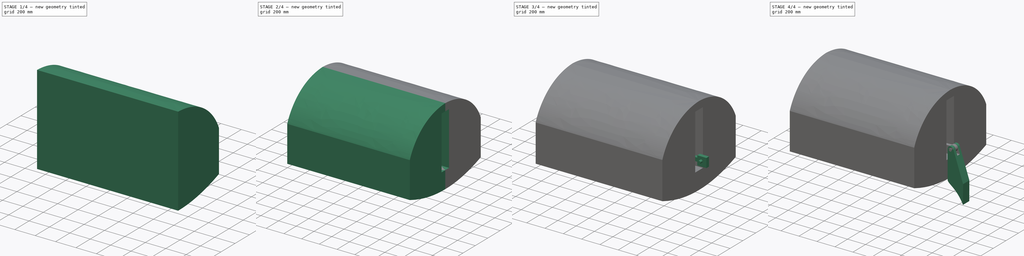
[diagram: build sequence overview — one tinted view per stage of 4, left to right]
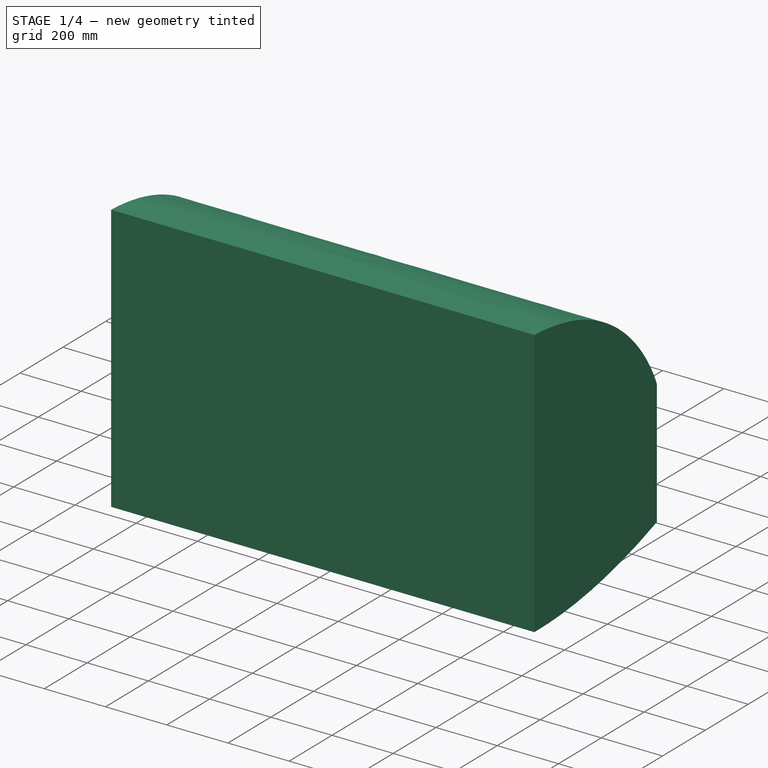
[diagram: stage 1 of 4 — iso view after this stage's code; geometry added in this stage tinted green]
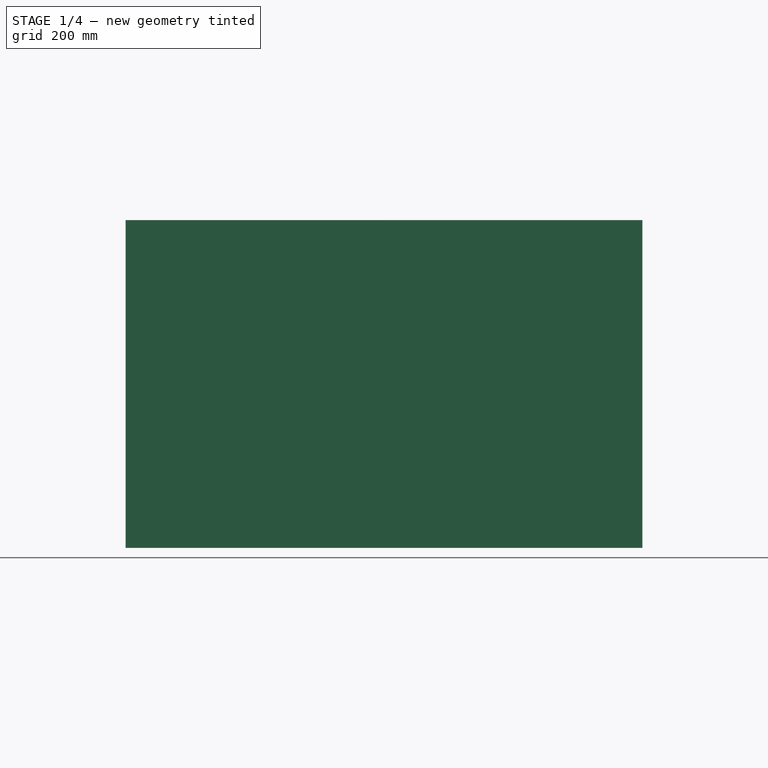
[diagram: stage 1 of 4 — front view after this stage's code; geometry added in this stage tinted green]
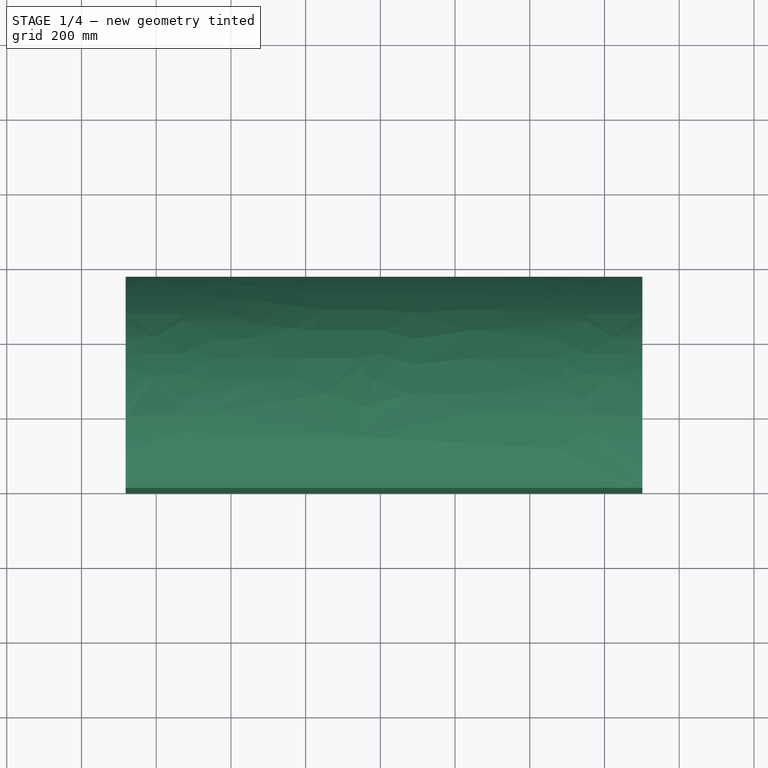
[diagram: stage 1 of 4 — top view after this stage's code; geometry added in this stage tinted green]
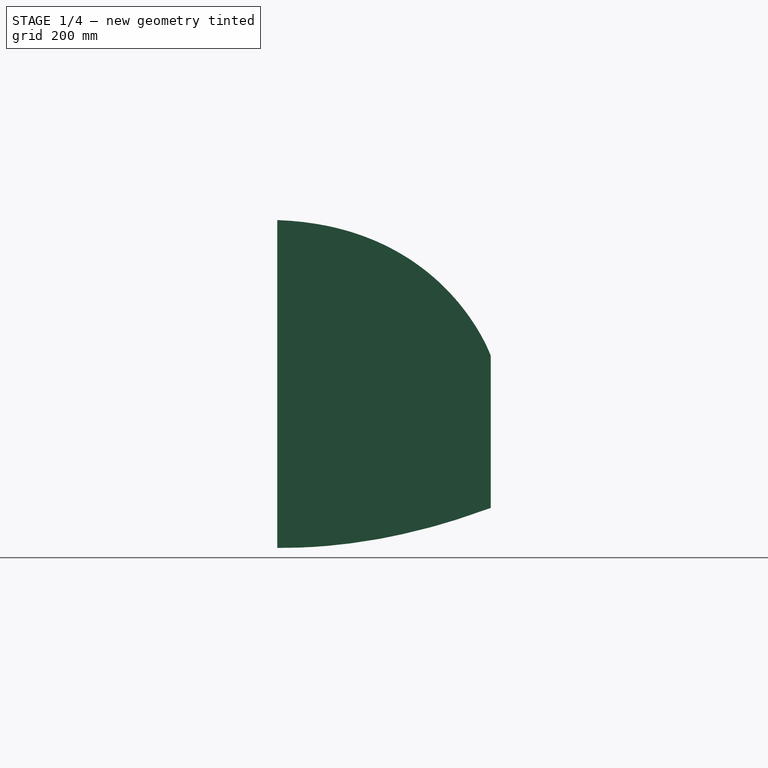
[diagram: stage 1 of 4 — right view after this stage's code; geometry added in this stage tinted green]
FCSTD DOCUMENT  (FreeCAD 0.17R13509 (Git))
Label: grid_parts
License: All rights reserved
LicenseURL: http://en.wikipedia.org/wiki/All_rights_reserved
objects: Sketcher::SketchObject×6, Part::Sweep×3, Part::Box×2, Part::Cut×2, Part::Cylinder×1, Part::Mirroring×1, Part::MultiFuse×1
note: 16 computed .brp shape members not serialized (recipe doc carries the construction recipe); baked Part::Feature solids carry a one-line shape summary decoded from their .brp

FEATURE [Sketcher::SketchObject] Sketch005
  Placement = pos=(0,0,0) rot=(1,0,0;1.5708rad)
  sketch-geometry (1):
    g0: LineSegment StartX=4901.53 StartY=0.31053 StartZ=0 EndX=3518 EndY=0.31053 EndZ=0
  constraints (1):
    c: Horizontal(g0)
FEATURE [Sketcher::SketchObject] Sketch004
  Placement = pos=(4700,0,0) rot=(0.57735,0.57735,0.57735;2.0944rad)
  sketch-geometry (15):
    g0-g3: Circle [constr] x4 (B-spline internal-alignment scaffolding for g4; pole/knot coordinates omitted)
    g4: BSplineCurve PolesCount=4 KnotsCount=2 Degree=3 IsPeriodic=0
    g5: GeomPoint [constr] X=0 Y=573.341 Z=0
    g6: GeomPoint [constr] X=-571.498 Y=209.849 Z=0
    g7: LineSegment StartX=-571.498 StartY=209.849 StartZ=0 EndX=-571.498 EndY=-197.16 EndZ=0
    g8: Circle [constr] CenterX=-571.498 CenterY=-197.16 CenterZ=0 NormalX=0 NormalY=0 NormalZ=1 AngleXU=0 Radius=50
    g9: Circle [constr] CenterX=-276.684 CenterY=-306.23 CenterZ=0 NormalX=0 NormalY=0 NormalZ=1 AngleXU=0 Radius=50
    g10: Circle [constr] CenterX=0 CenterY=-304.213 CenterZ=0 NormalX=0 NormalY=0 NormalZ=1 AngleXU=0 Radius=50
    g11: BSplineCurve PolesCount=3 KnotsCount=2 Degree=2 IsPeriodic=0
    g12: GeomPoint [constr] X=-571.498 Y=-197.16 Z=0
    g13: GeomPoint [constr] X=0 Y=-304.213 Z=0
    g14: LineSegment StartX=0 StartY=573.341 StartZ=0 EndX=0 EndY=-304.213 EndZ=0
  constraints (23):
    c: Radius(g0) = 60
    c: Equal(g0,g1)
    c: Equal(g0,g2)
    c: Equal(g0,g3)
    c: InternalAlignment(g0-g3 -> g4) x4
    c: InternalAlignment(g5,g4)
    c: InternalAlignment(g6,g4)
    c: Coincident(g7,g2)
    c: Vertical(g7)
    c: Coincident(g8,g7)
    c: Radius(g8) = 50
    c: Equal(g8,g9)
    c: Equal(g8,g10)
    c: PointOnObject(g10,g-2)
    c: InternalAlignment(g8,g11)
    c: InternalAlignment(g9,g11)
    c: InternalAlignment(g10,g11)
    c: InternalAlignment(g12,g11)
    c: InternalAlignment(g13,g11)
    c: Coincident(g14,g0)
    c: Coincident(g14,g10)
    c: Vertical(g14)
    c: Coincident(g2,g3)
FEATURE [Part::Sweep] Sweep002
  Frenet = false
  Sections = -> [Sketch004]
  Solid = true
  Spine = -> Sketch005 [Edge1]
  Transition = 1
FEATURE [Part::Mirroring] Part__Mirroring  label="Sweep002 (Mirror #1)"
  Base = (0,0,0)
  Normal = (0,1,0)
  Source = -> Sweep002
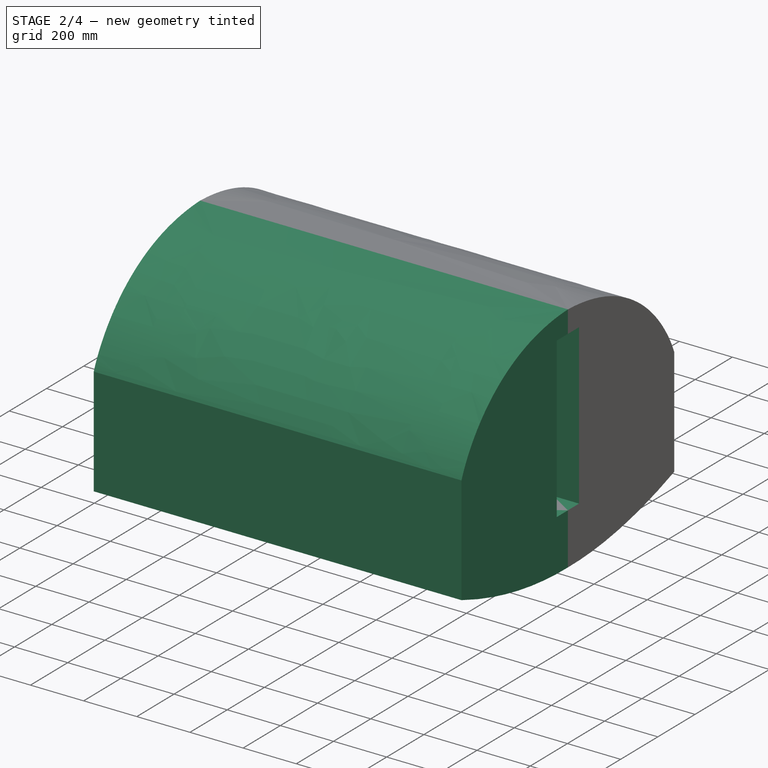
[diagram: stage 2 of 4 — iso view after this stage's code; geometry added in this stage tinted green]
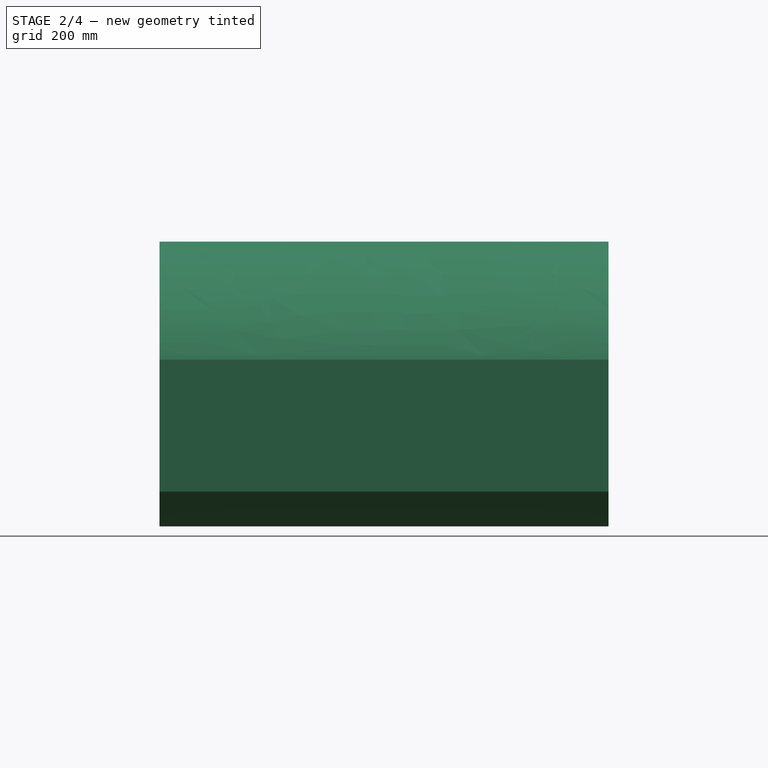
[diagram: stage 2 of 4 — front view after this stage's code; geometry added in this stage tinted green]
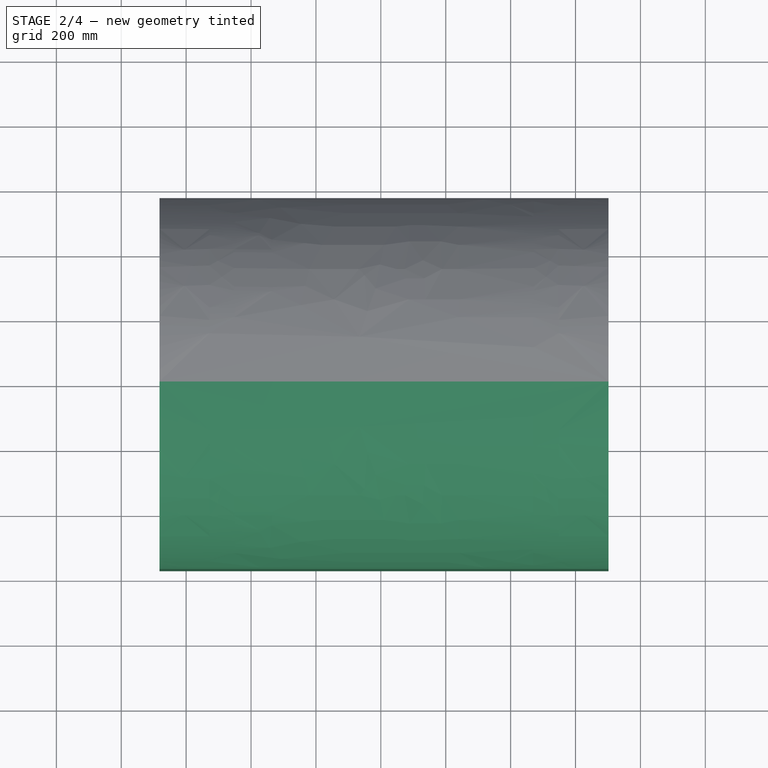
[diagram: stage 2 of 4 — top view after this stage's code; geometry added in this stage tinted green]
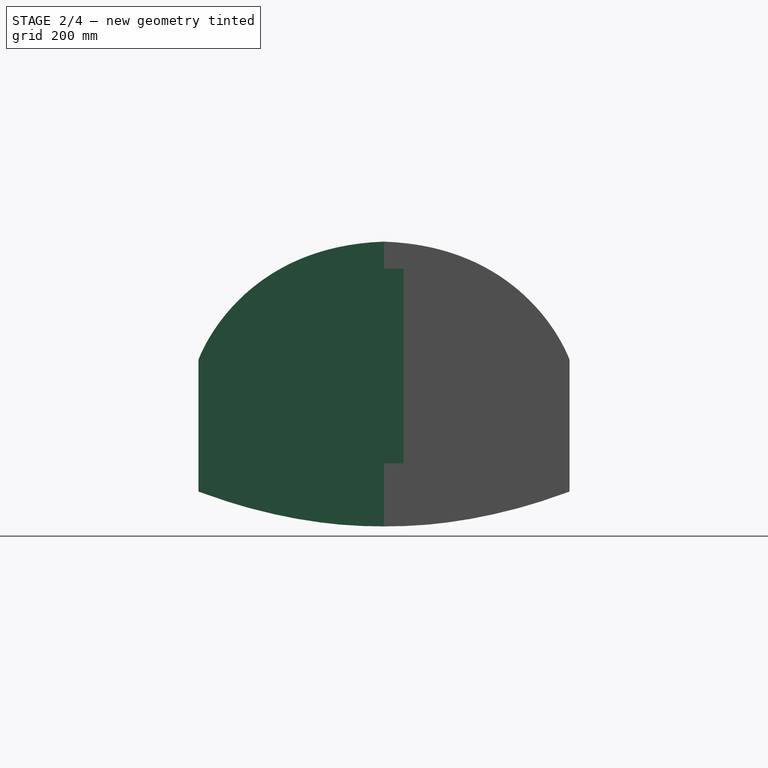
[diagram: stage 2 of 4 — right view after this stage's code; geometry added in this stage tinted green]
FEATURE [Part::Box] Box001  label="Cube001"
  AttacherType = Attacher::AttachEngine3D
  Height = 600
  Length = 100
  Placement = pos=(4805,-60,-110) rot=(0,0,1;0rad)
  Width = 120
FEATURE [Part::MultiFuse] Fusion
  Shapes = -> [Part__Mirroring,Sweep002]
FEATURE [Part::Cut] Cut001
  Base = -> Fusion
  Tool = -> Box001
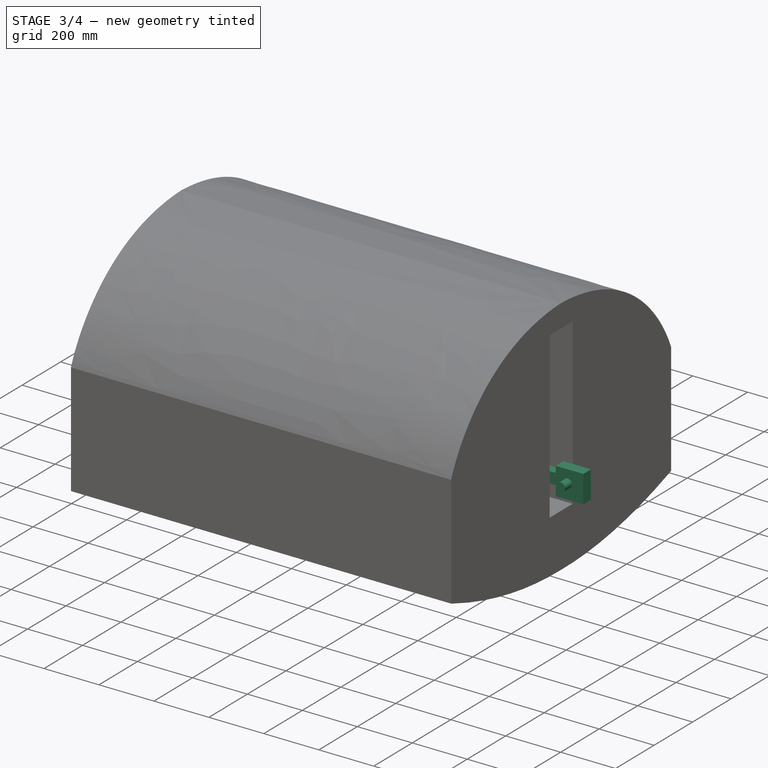
[diagram: stage 3 of 4 — iso view after this stage's code; geometry added in this stage tinted green]
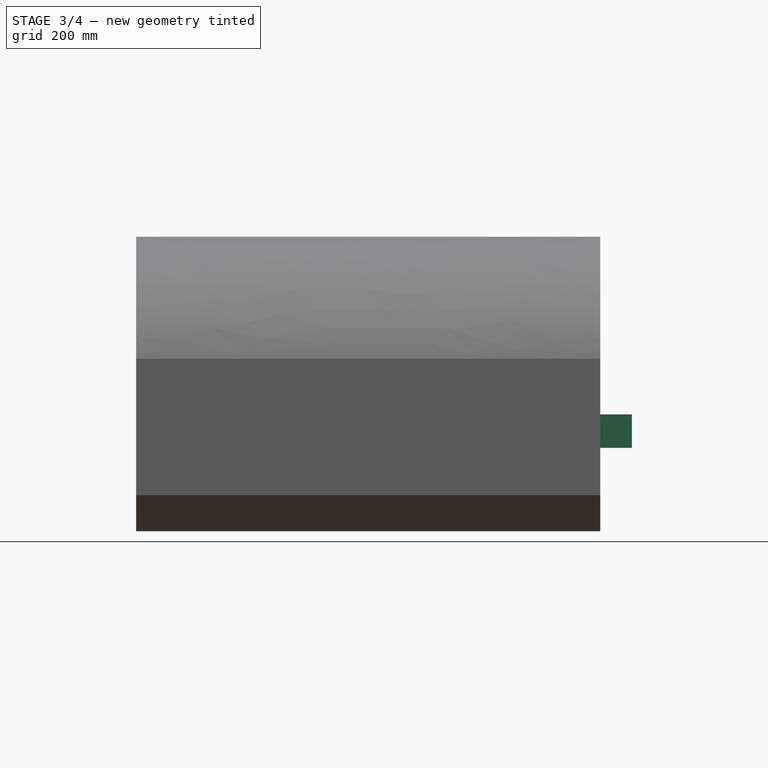
[diagram: stage 3 of 4 — front view after this stage's code; geometry added in this stage tinted green]
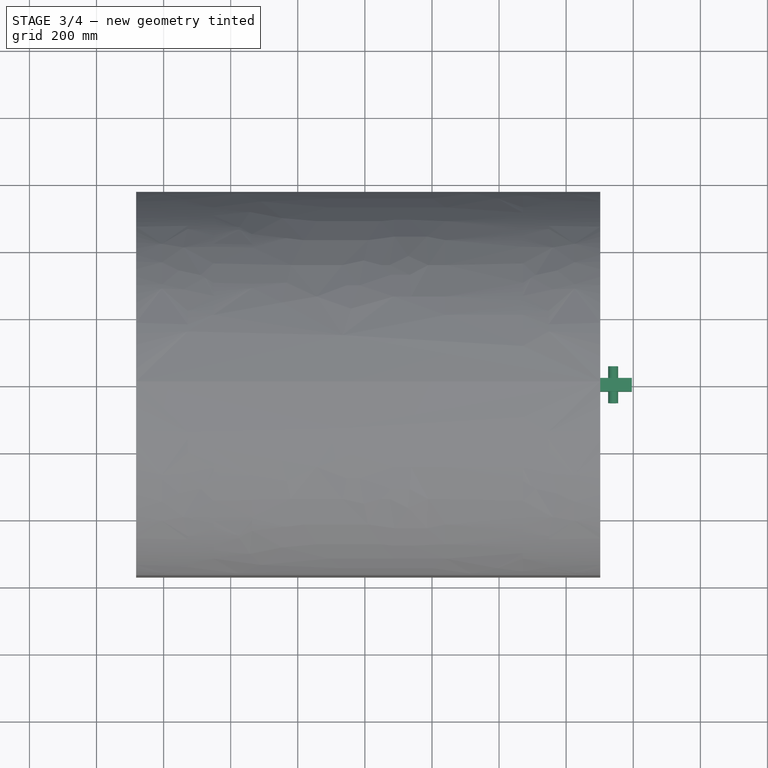
[diagram: stage 3 of 4 — top view after this stage's code; geometry added in this stage tinted green]
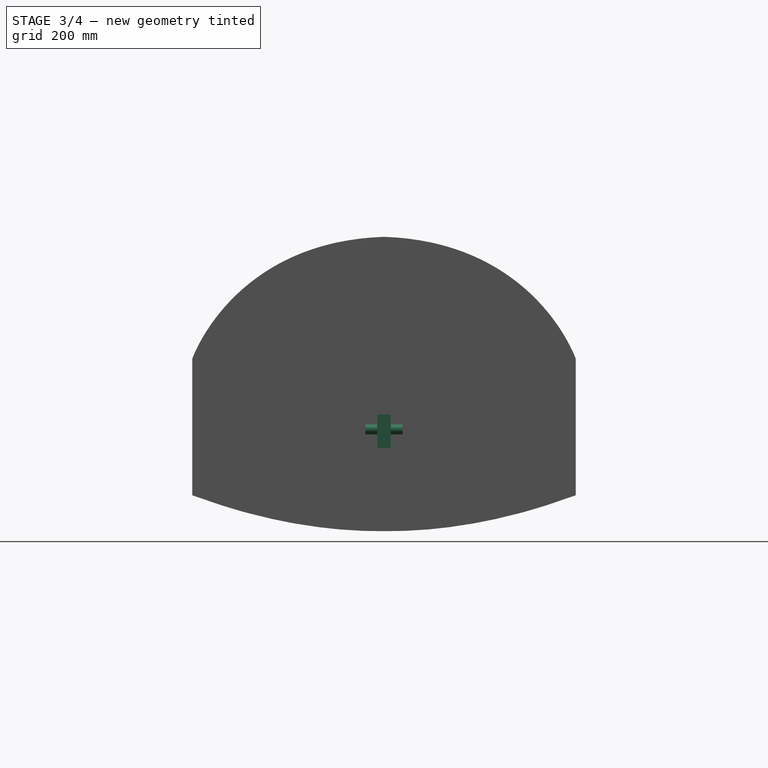
[diagram: stage 3 of 4 — right view after this stage's code; geometry added in this stage tinted green]
FEATURE [Part::Box] Box  label="Cube"
  AttacherType = Attacher::AttachEngine3D
  Height = 100
  Length = 100
  Placement = pos=(4896,-20,-56) rot=(0,0,1;0rad)
  Width = 40
FEATURE [Sketcher::SketchObject] Sketch002
  Placement = pos=(0,0,0) rot=(-1,0,0;4.71239rad)
  sketch-geometry (14):
    g0: ArcOfCircle CenterX=4940.21 CenterY=-1.03384 CenterZ=0 NormalX=0 NormalY=0 NormalZ=1 AngleXU=0 Radius=34.6357 StartAngle=3.91269 EndAngle=8.67172
    g1: Circle [constr] CenterX=4914.94 CenterY=22.6527 CenterZ=0 NormalX=0 NormalY=0 NormalZ=1 AngleXU=0 Radius=3
    g2: Circle [constr] CenterX=4909 CenterY=16.8287 CenterZ=0 NormalX=0 NormalY=0 NormalZ=1 AngleXU=0 Radius=3
    g3: Circle [constr] CenterX=4734.1 CenterY=17.0495 CenterZ=0 NormalX=0 NormalY=0 NormalZ=1 AngleXU=0 Radius=3
    g4: BSplineCurve PolesCount=3 KnotsCount=2 Degree=2 IsPeriodic=0
    g5: GeomPoint [constr] X=4914.94 Y=22.6527 Z=0
    g6: GeomPoint [constr] X=4734.1 Y=17.0495 Z=0
    g7: Circle [constr] CenterX=4915.37 CenterY=-25.1723 CenterZ=0 NormalX=0 NormalY=0 NormalZ=1 AngleXU=0 Radius=3
    g8: Circle [constr] CenterX=4908.81 CenterY=-19.0873 CenterZ=0 NormalX=0 NormalY=0 NormalZ=1 AngleXU=0 Radius=3
    g9: Circle [constr] CenterX=4734.1 CenterY=-18.861 CenterZ=0 NormalX=0 NormalY=0 NormalZ=1 AngleXU=0 Radius=3
    g10: BSplineCurve PolesCount=3 KnotsCount=2 Degree=2 IsPeriodic=0
    g11: GeomPoint [constr] X=4915.37 Y=-25.1723 Z=0
    g12: GeomPoint [constr] X=4734.1 Y=-18.861 Z=0
    g13: LineSegment StartX=4734.1 StartY=17.0495 StartZ=0 EndX=4734.1 EndY=-18.861 EndZ=0
  constraints (21):
    c: Coincident(g1,g0)
    c: Radius(g1) = 3
    c: Equal(g1,g2)
    c: Equal(g1,g3)
    c: InternalAlignment(g1,g4)
    c: InternalAlignment(g2,g4)
    c: InternalAlignment(g3,g4)
    c: InternalAlignment(g5,g4)
    c: InternalAlignment(g6,g4)
    c: Coincident(g7,g0)
    c: Radius(g7) = 3
    c: Equal(g7,g8)
    c: Equal(g7,g9)
    c: InternalAlignment(g7,g10)
    c: InternalAlignment(g8,g10)
    c: InternalAlignment(g9,g10)
    c: InternalAlignment(g11,g10)
    c: InternalAlignment(g12,g10)
    c: Coincident(g13,g3)
    c: Coincident(g13,g9)
    c: Vertical(g13)
FEATURE [Sketcher::SketchObject] Sketch003
  Placement = pos=(0,0,0) rot=(0.57735,0.57735,0.57735;2.0944rad)
  sketch-geometry (1):
    g0: LineSegment StartX=-17.5 StartY=9.10621 StartZ=0 EndX=17.5 EndY=9.10621 EndZ=0
  constraints (3):
    c: Horizontal(g0)
    c: Distance(g0) = 35
    c: DistanceX(g0,g-1) = 17.5
FEATURE [Part::Sweep] Sweep001
  Frenet = false
  Sections = -> [Sketch002]
  Solid = true
  Spine = -> Sketch003 [Edge1]
  Transition = 1
FEATURE [Part::Cylinder] Cylinder
  Angle = 360
  AttacherType = Attacher::AttachEngine3D
  Height = 110
  Placement = pos=(4940,55,-1) rot=(1,0,0;1.5708rad)
  Radius = 15
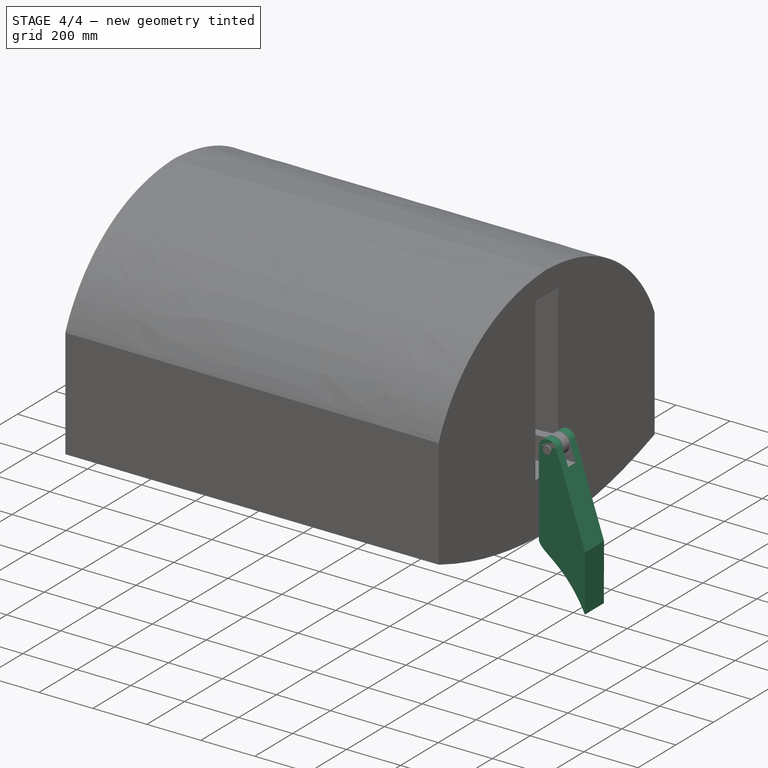
[diagram: stage 4 of 4 — iso view after this stage's code; geometry added in this stage tinted green]
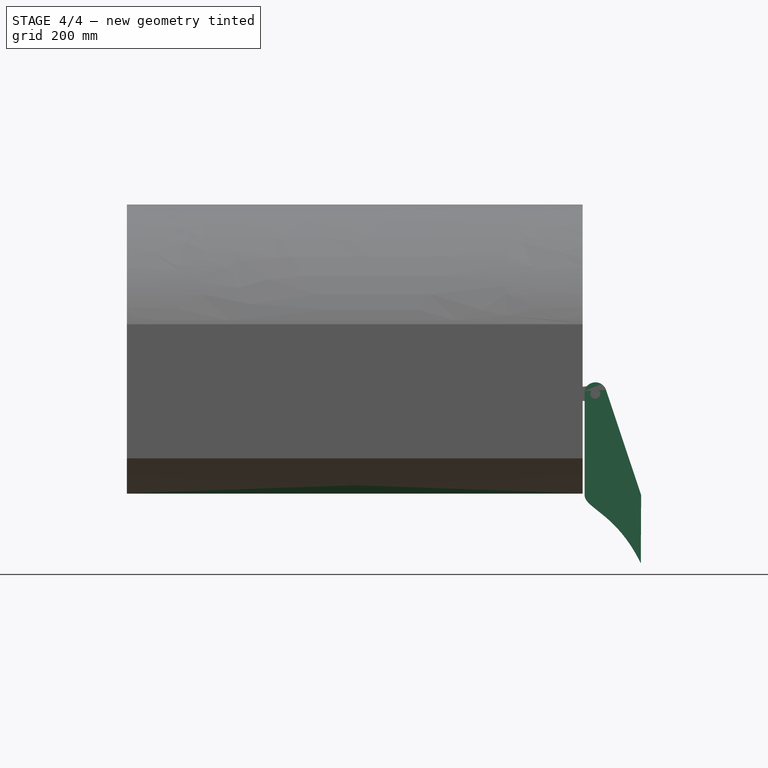
[diagram: stage 4 of 4 — front view after this stage's code; geometry added in this stage tinted green]
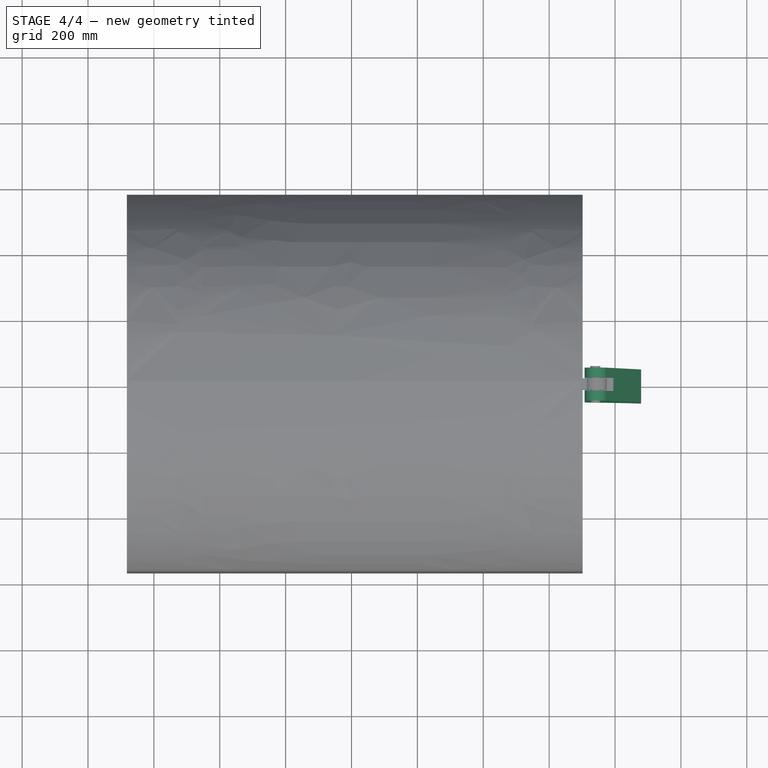
[diagram: stage 4 of 4 — top view after this stage's code; geometry added in this stage tinted green]
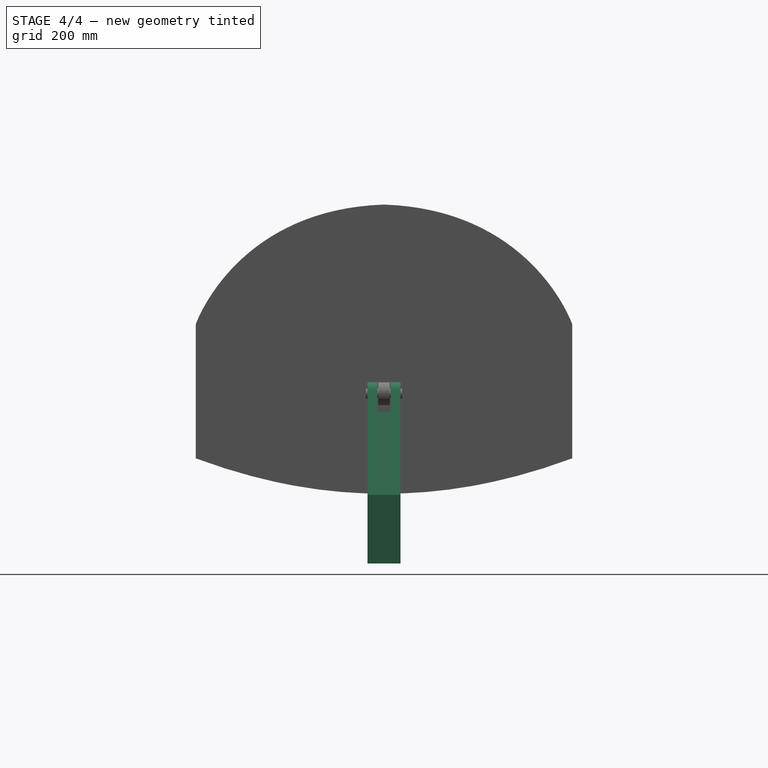
[diagram: stage 4 of 4 — right view after this stage's code; geometry added in this stage tinted green]
FEATURE [Sketcher::SketchObject] Sketch001
  Placement = pos=(0,0,0) rot=(0.57735,0.57735,0.57735;2.0944rad)
  sketch-geometry (1):
    g0: LineSegment StartX=50 StartY=-102.429 StartZ=0 EndX=-50 EndY=-102.429 EndZ=0
  constraints (3):
    c: Horizontal(g0)
    c: Distance(g0) = 100
    c: DistanceX(g0) = -50
FEATURE [Sketcher::SketchObject] Sketch
  Placement = pos=(0,0,0) rot=(1,0,0;1.5708rad)
  sketch-geometry (11):
    g0: LineSegment StartX=5079.15 StartY=-307.963 StartZ=0 EndX=4972.61 EndY=10.4508 EndZ=0
    g1: LineSegment StartX=4907.56 StartY=7.28418 StartZ=0 EndX=4907.56 EndY=-308.011 EndZ=0
    g2: ArcOfCircle CenterX=4940.51 CenterY=-0.0310379 CenterZ=0 NormalX=0 NormalY=0 NormalZ=1 AngleXU=0 Radius=33.76 StartAngle=0.3157 EndAngle=2.92318
    g3-g6: Circle [constr] x4 (B-spline internal-alignment scaffolding for g7; pole/knot coordinates omitted)
    g7: BSplineCurve PolesCount=4 KnotsCount=2 Degree=3 IsPeriodic=0
    g8: GeomPoint [constr] X=4907.56 Y=-308.011 Z=0
    g9: GeomPoint [constr] X=5078.21 Y=-516.165 Z=0
    g10: LineSegment StartX=5079.15 StartY=-307.963 StartZ=0 EndX=5078.21 EndY=-516.165 EndZ=0
  constraints (13):
    c: Vertical(g1)
    c: Coincident(g2,g1)
    c: Coincident(g2,g0)
    c: Radius(g3) = 8
    c: Equal(g3,g4)
    c: Equal(g3,g5)
    c: Equal(g3,g6)
    c: InternalAlignment(g3-g6 -> g7) x4
    c: InternalAlignment(g8,g7)
    c: InternalAlignment(g9,g7)
    c: Coincident(g10,g6)
    c: Coincident(g0,g10)
    c: Coincident(g1,g3)
FEATURE [Part::Sweep] Sweep
  Frenet = false
  Sections = -> [Sketch]
  Solid = true
  Spine = -> Sketch001 [Edge1]
  Transition = 1
FEATURE [Part::Cut] Cut
  Base = -> Sweep
  Tool = -> Box
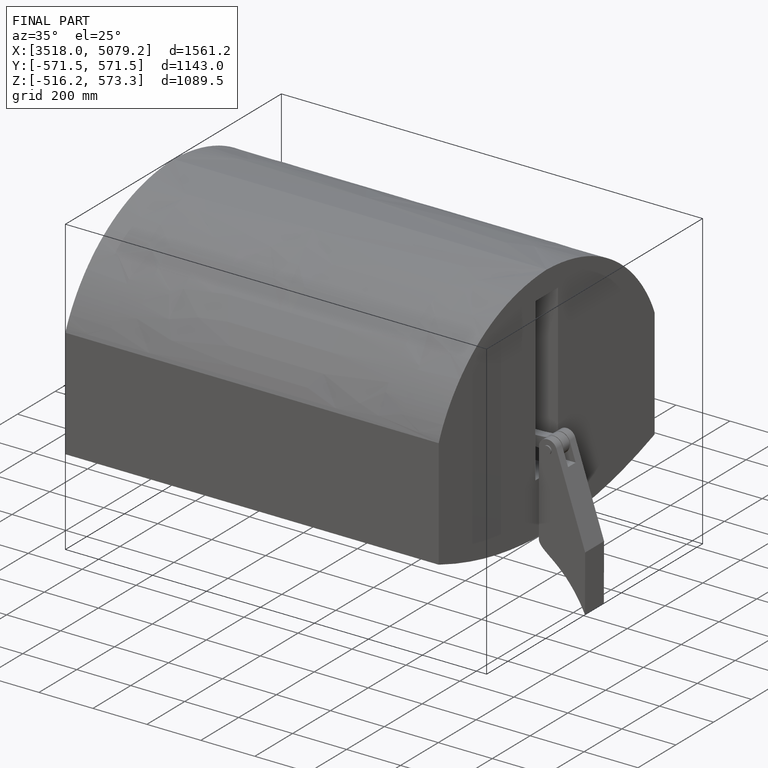
[diagram: finished part — iso view with bounding-box wireframe]
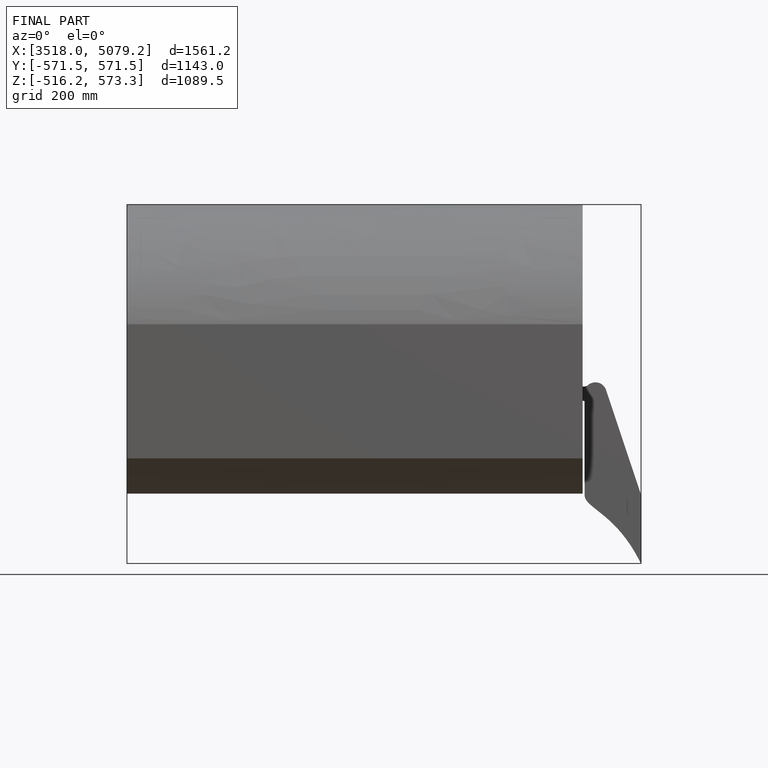
[diagram: finished part — front view with bounding-box wireframe]
